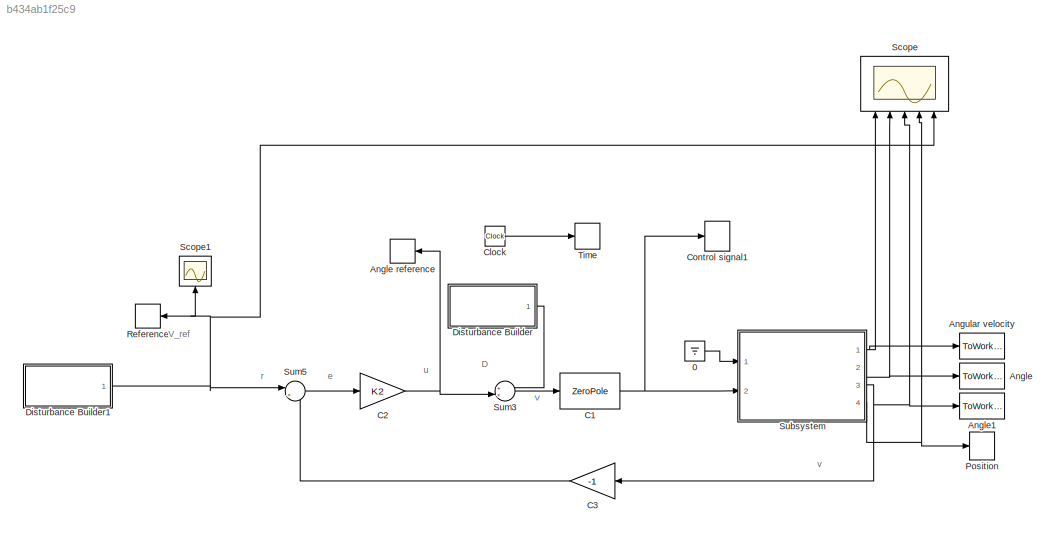
MODEL slx_b434ab1f25c9
KIND model
CONFIG AbsTol = auto
CONFIG EnableMultiTasking = off
CONFIG FixedStep = auto
CONFIG MaxStep = auto
CONFIG MinStep = auto
CONFIG RelTol = 1e-3
CONFIG SampleTimeConstraint = Unconstrained
CONFIG Solver = VariableStepAuto
CONFIG SolverName = VariableStepAuto
CONFIG StartTime = 0.0
CONFIG StopTime = tsim
WORKSPACE source: MAT-file member
WORKSPACE MCOS: class17 (value not decoded)
BLOCK [Ground] 0
BLOCK [ToWorkspace] Angle
  MaxDataPoints = inf
  Ports = [1]
  SampleTime = -1
  VariableName = theta
BLOCK [ToWorkspace] Angle reference
  MaxDataPoints = inf
  Ports = [1]
  SampleTime = -1
  VariableName = ri
BLOCK [ToWorkspace] Angle1
  MaxDataPoints = inf
  Ports = [1]
  SampleTime = -1
  VariableName = V
BLOCK [ToWorkspace] Angular velocity
  MaxDataPoints = inf
  Ports = [1]
  SampleTime = -1
  VariableName = omega
BLOCK [ZeroPole] C1
  ContinuousStateAttributes = 'Velocity'
  Gain = [Controller_Gain]
  Poles = [-poles]
  Zeros = [-zeroes]
BLOCK [Gain] C2
  Gain = K2
  OutDataTypeStr = Inherit: Inherit via internal rule
  ParamDataTypeStr = Inherit: Inherit via internal rule
  SaturateOnIntegerOverflow = off
BLOCK [Gain] C3
  Gain = -1
  OutDataTypeStr = Inherit: Inherit via internal rule
  ParamDataTypeStr = Inherit: Inherit via internal rule
  SaturateOnIntegerOverflow = off
BLOCK [Clock] Clock
BLOCK [ToWorkspace] Control signal1
  MaxDataPoints = inf
  Ports = [1]
  SampleTime = -1
  VariableName = u
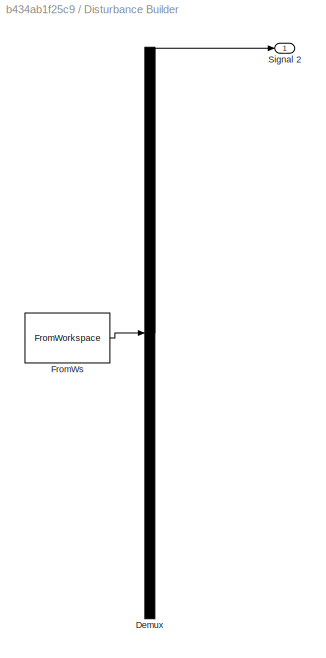
BLOCK [SubSystem] Disturbance Builder
  ClipboardFcn = sigbuilder_block('clipboard');
  CloseFcn = sigbuilder_block('close');
  ContinueFcn = sigbuilder_block('continue');
  CopyFcn = sigbuilder_block('copy');
  DeleteFcn = sigbuilder_block('delete');
  LoadFcn = sigbuilder_block('load');
  MaskHideContents = on
  ModelCloseFcn = sigbuilder_block('modelClose');
  NameChangeFcn = sigbuilder_block('namechange');
  OpenFcn = sigbuilder_block('open',[203 87.5 550.5 362.5 ]);
  PauseFcn = sigbuilder_block('pause');
  Ports = [0, 1]
  PreSaveFcn = sigbuilder_block('preSave');
  RequestExecContextInheritance = off
  StartFcn = sigbuilder_block('start');
  StopFcn = sigbuilder_block('stop');
  Tag = STV Subsys
  Variant = off
BLOCK [Demux] Disturbance Builder/Demux
  Outputs = 1
  Ports = [1, 1]
  Tag = STV Demux
BLOCK [FromWorkspace] Disturbance Builder/FromWs
  SampleTime = 0
  Tag = STV FromWs
  VariableName = tuvar
  ZeroCross = on
BLOCK [Outport] Disturbance Builder/Signal 2
  IconDisplay = Port number
  Tag = STV Outport
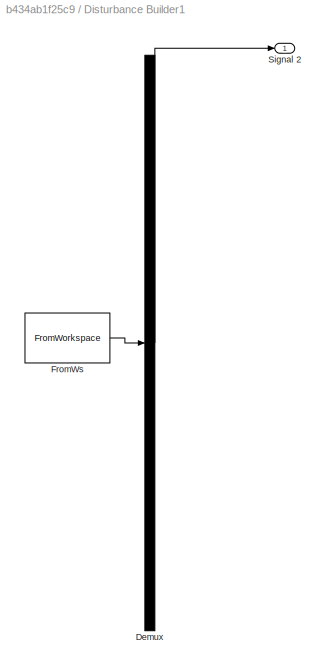
BLOCK [SubSystem] Disturbance Builder1
  ClipboardFcn = sigbuilder_block('clipboard');
  CloseFcn = sigbuilder_block('close');
  ContinueFcn = sigbuilder_block('continue');
  CopyFcn = sigbuilder_block('copy');
  DeleteFcn = sigbuilder_block('delete');
  LoadFcn = sigbuilder_block('load');
  MaskHideContents = on
  ModelCloseFcn = sigbuilder_block('modelClose');
  NameChangeFcn = sigbuilder_block('namechange');
  OpenFcn = sigbuilder_block('open',[203 87.5 550.5 362.5 ]);
  PauseFcn = sigbuilder_block('pause');
  Ports = [0, 1]
  PreSaveFcn = sigbuilder_block('preSave');
  RequestExecContextInheritance = off
  StartFcn = sigbuilder_block('start');
  StopFcn = sigbuilder_block('stop');
  Tag = STV Subsys
  Variant = off
BLOCK [Demux] Disturbance Builder1/Demux
  Outputs = 1
  Ports = [1, 1]
  Tag = STV Demux
BLOCK [FromWorkspace] Disturbance Builder1/FromWs
  SampleTime = 0
  Tag = STV FromWs
  VariableName = tuvar
  ZeroCross = on
BLOCK [Outport] Disturbance Builder1/Signal 2
  IconDisplay = Port number
  Tag = STV Outport
BLOCK [ToWorkspace] Position
  MaxDataPoints = inf
  Ports = [1]
  SampleTime = -1
  VariableName = x
BLOCK [ToWorkspace] Reference
  MaxDataPoints = inf
  Ports = [1]
  SampleTime = -1
  VariableName = r
BLOCK [Scope] Scope
  NumInputPorts = 5
  Ports = [5]
  ScopeSpecificationString = Simulink.scopes.TimeScopeBlockCfg('CurrentConfiguration', extmgr.ConfigurationSet(extmgr.Configuration('Core','General UI',true),extmgr.Configuration('Core','Source UI',true),extmgr.Configuration('Sources','WiredSimulink',true),extmgr.Configuration('Visuals','Time Domain',true,'SerializedDisplays',{struct('MinYLimReal','-8.09825','MaxYLimReal','3.29982','YLabelReal','','MinYLimMag','0.00000','MaxY...<+3484ch>
BLOCK [Scope] Scope1
  NumInputPorts = 1
  Ports = [1]
  ScopeSpecificationString = Simulink.scopes.TimeScopeBlockCfg('CurrentConfiguration', extmgr.ConfigurationSet(extmgr.Configuration('Core','General UI',true),extmgr.Configuration('Core','Source UI',true),extmgr.Configuration('Sources','WiredSimulink',true,'DataLoggingVariableName','ScopeData1'),extmgr.Configuration('Visuals','Time Domain',true,'SerializedDisplays',{struct('MinYLimReal','-1.00000','MaxYLimReal','1.00000','YLab...<+1460ch>
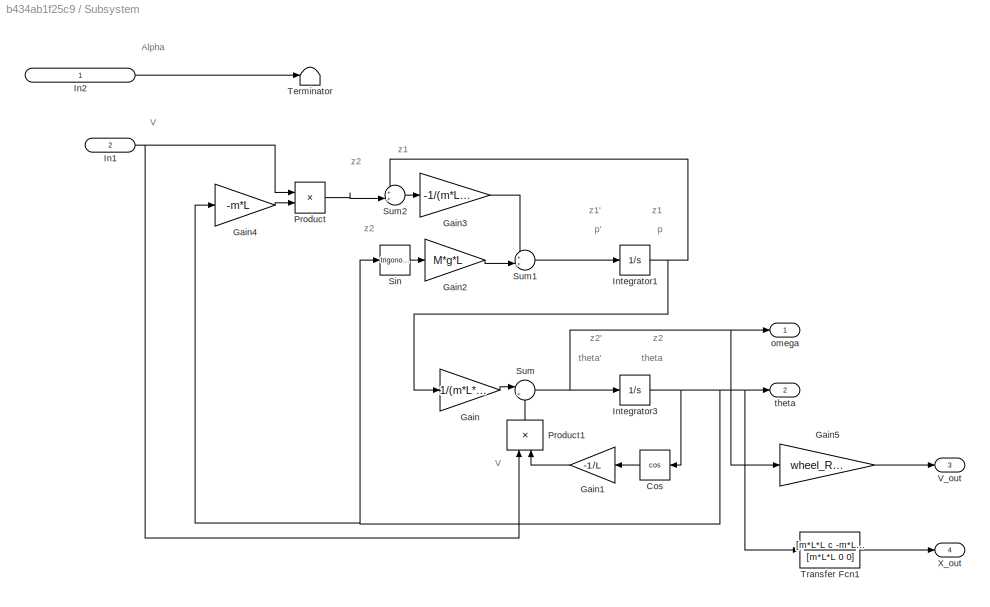
BLOCK [SubSystem] Subsystem
  Ports = [2, 4]
  RequestExecContextInheritance = off
  Variant = off
BLOCK [Trigonometry] Subsystem/Cos
  Operator = cos
  Ports = [1, 1]
BLOCK [Gain] Subsystem/Gain
  Gain = 1/(m*L*L)
  OutDataTypeStr = Inherit: Inherit via internal rule
  ParamDataTypeStr = Inherit: Inherit via internal rule
  SaturateOnIntegerOverflow = off
BLOCK [Gain] Subsystem/Gain1
  Gain = -1/L
  OutDataTypeStr = Inherit: Inherit via internal rule
  ParamDataTypeStr = Inherit: Inherit via internal rule
  SaturateOnIntegerOverflow = off
BLOCK [Gain] Subsystem/Gain2
  Gain = M*g*L
  OutDataTypeStr = Inherit: Inherit via internal rule
  ParamDataTypeStr = Inherit: Inherit via internal rule
  SaturateOnIntegerOverflow = off
BLOCK [Gain] Subsystem/Gain3
  Gain = -1/(m*L*L)
  OutDataTypeStr = Inherit: Inherit via internal rule
  ParamDataTypeStr = Inherit: Inherit via internal rule
  SaturateOnIntegerOverflow = off
BLOCK [Gain] Subsystem/Gain4
  Gain = -m*L
  OutDataTypeStr = Inherit: Inherit via internal rule
  ParamDataTypeStr = Inherit: Inherit via internal rule
  SaturateOnIntegerOverflow = off
BLOCK [Gain] Subsystem/Gain5
  Gain = wheel_Radius
  OutDataTypeStr = Inherit: Inherit via internal rule
  ParamDataTypeStr = Inherit: Inherit via internal rule
  SaturateOnIntegerOverflow = off
BLOCK [Inport] Subsystem/In1
  IconDisplay = Port number and signal name
  Port = 2
  VarSizeSig = No
BLOCK [Inport] Subsystem/In2
  IconDisplay = Port number and signal name
  VarSizeSig = No
BLOCK [Integrator] Subsystem/Integrator1
  Ports = [1, 1]
BLOCK [Integrator] Subsystem/Integrator3
  Ports = [1, 1]
BLOCK [Product] Subsystem/Product
  InputSameDT = off
  OutDataTypeStr = Inherit: Inherit via internal rule
  Ports = [2, 1]
  RndMeth = Floor
  SaturateOnIntegerOverflow = off
BLOCK [Product] Subsystem/Product1
  InputSameDT = off
  OutDataTypeStr = Inherit: Inherit via internal rule
  Ports = [2, 1]
  RndMeth = Floor
  SaturateOnIntegerOverflow = off
BLOCK [Trigonometry] Subsystem/Sin
  Ports = [1, 1]
BLOCK [Sum] Subsystem/Sum
  IconShape = round
  InputSameDT = off
  Inputs = |++
  OutDataTypeStr = Inherit: Inherit via internal rule
  Ports = [2, 1]
  SaturateOnIntegerOverflow = off
BLOCK [Sum] Subsystem/Sum1
  IconShape = round
  InputSameDT = off
  Inputs = ++|
  OutDataTypeStr = Inherit: Inherit via internal rule
  Ports = [2, 1]
  SaturateOnIntegerOverflow = off
BLOCK [Sum] Subsystem/Sum2
  IconShape = round
  InputSameDT = off
  Inputs = ++|
  OutDataTypeStr = Inherit: Inherit via internal rule
  Ports = [2, 1]
  SaturateOnIntegerOverflow = off
BLOCK [Terminator] Subsystem/Terminator
BLOCK [TransferFcn] Subsystem/Transfer Fcn1
  ContinuousStateAttributes = 'x'
  Denominator = [m*L*L 0 0]
  Numerator = [m*L*L c -m*L*g]
BLOCK [Outport] Subsystem/V_out
  IconDisplay = Port number
  Port = 3
BLOCK [Outport] Subsystem/X_out
  IconDisplay = Port number
  Port = 4
BLOCK [Outport] Subsystem/omega
  IconDisplay = Port number
BLOCK [Outport] Subsystem/theta
  IconDisplay = Port number
  Port = 2
BLOCK [Sum] Sum3
  IconShape = round
  InputSameDT = off
  Inputs = ++|
  OutDataTypeStr = Inherit: Inherit via internal rule
  Ports = [2, 1]
  SaturateOnIntegerOverflow = off
BLOCK [Sum] Sum5
  IconShape = round
  InputSameDT = off
  Inputs = |+-
  OutDataTypeStr = Inherit: Inherit via internal rule
  Ports = [2, 1]
  SaturateOnIntegerOverflow = off
BLOCK [ToWorkspace] Time
  MaxDataPoints = inf
  Ports = [1]
  SampleTime = -1
  VariableName = t
ANNOTATION (root): D
ANNOTATION (root): V_ref
ANNOTATION (root): e
ANNOTATION (root): r
ANNOTATION (root): u
ANNOTATION (root): v
ANNOTATION Subsystem: Alpha
ANNOTATION Subsystem: V
ANNOTATION Subsystem: p
ANNOTATION Subsystem: p'
ANNOTATION Subsystem: theta
ANNOTATION Subsystem: theta'
ANNOTATION Subsystem: z1
ANNOTATION Subsystem: z1'
ANNOTATION Subsystem: z2
ANNOTATION Subsystem: z2'
LINE 0:1 -> Subsystem:1
NET C1:1 -> Control signal1:1, Subsystem:2
NET C2:1 -> Angle reference:1, Sum3:2
LINE C3:1 -> Sum5:2
LINE Clock:1 -> Time:1
NET Disturbance Builder1:1 -> Reference:1, Scope1:1, Scope:5, Sum5:1
LINE Disturbance Builder:1 -> Sum3:1
LINE Subsystem/Cos:1 -> Subsystem/Gain1:1
LINE Subsystem/Gain1:1 -> Subsystem/Product1:2
LINE Subsystem/Gain2:1 -> Subsystem/Sum1:2
LINE Subsystem/Gain3:1 -> Subsystem/Sum1:1
LINE Subsystem/Gain4:1 -> Subsystem/Product:2
LINE Subsystem/Gain5:1 -> Subsystem/V_out:1
LINE Subsystem/Gain:1 -> Subsystem/Sum:1
NET Subsystem/In1:1 -> Subsystem/Product1:1, Subsystem/Product:1
LINE Subsystem/In2:1 -> Subsystem/Terminator:1
NET Subsystem/Integrator1:1 -> Subsystem/Gain:1, Subsystem/Sum2:1
NET Subsystem/Integrator3:1 -> Subsystem/Cos:1, Subsystem/Gain4:1, Subsystem/Sin:1, Subsystem/Transfer Fcn1:1, Subsystem/theta:1
LINE Subsystem/Product1:1 -> Subsystem/Sum:2
LINE Subsystem/Product:1 -> Subsystem/Sum2:2
LINE Subsystem/Sin:1 -> Subsystem/Gain2:1
LINE Subsystem/Sum1:1 -> Subsystem/Integrator1:1
LINE Subsystem/Sum2:1 -> Subsystem/Gain3:1
NET Subsystem/Sum:1 -> Subsystem/Gain5:1, Subsystem/Integrator3:1, Subsystem/omega:1
LINE Subsystem/Transfer Fcn1:1 -> Subsystem/X_out:1
NET Subsystem:1 -> Angular velocity:1, Scope:1
NET Subsystem:2 -> Angle:1, Scope:2
NET Subsystem:3 -> Angle1:1, C3:1, Scope:3
NET Subsystem:4 -> Position:1, Scope:4
LINE Sum3:1 -> C1:1
LINE Sum5:1 -> C2:1
note: NET lines group one-source signal fan-out (src -> all destinations, sorted); 1:1 wires keep LINE
